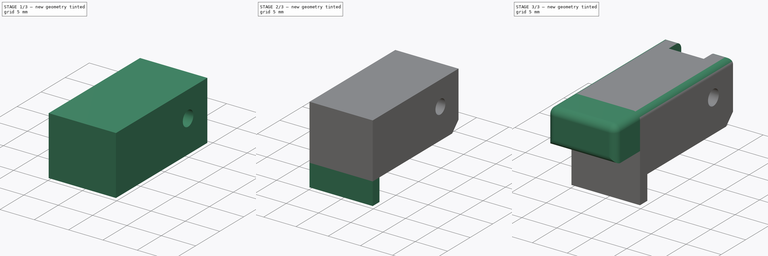
[diagram: build sequence overview — one tinted view per stage of 3, left to right]
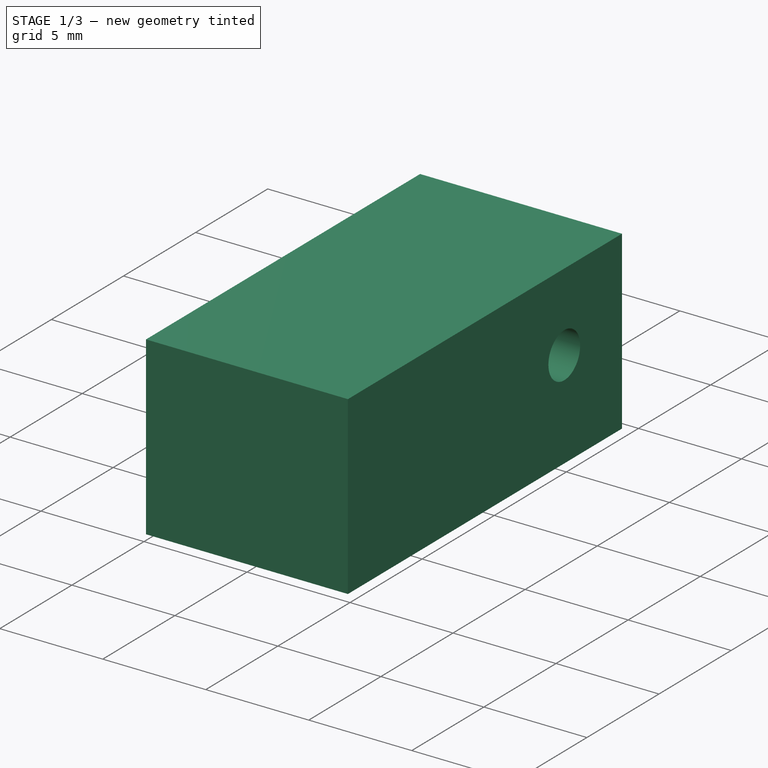
[diagram: stage 1 of 3 — iso view after this stage's code; geometry added in this stage tinted green]
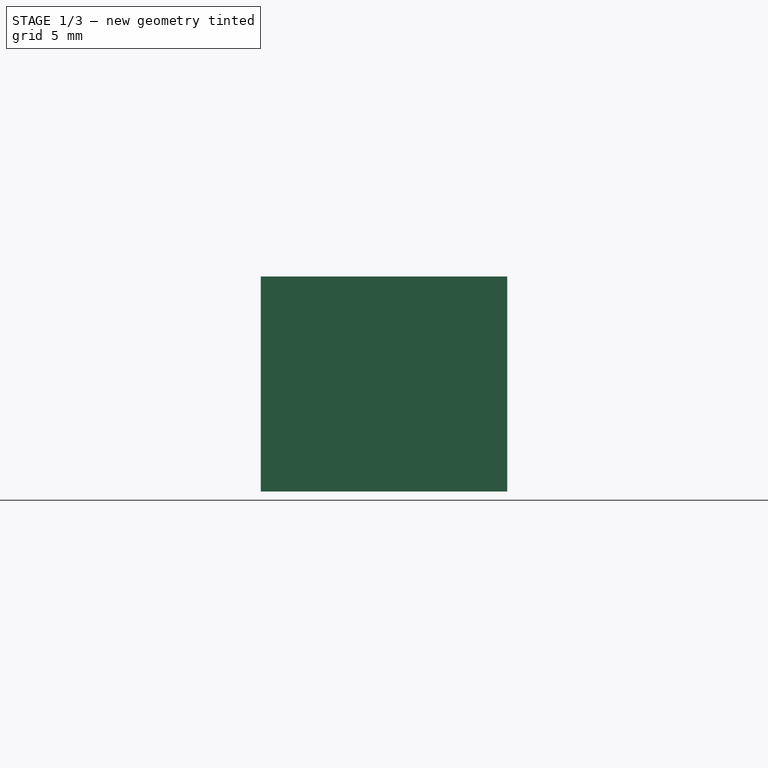
[diagram: stage 1 of 3 — front view after this stage's code; geometry added in this stage tinted green]
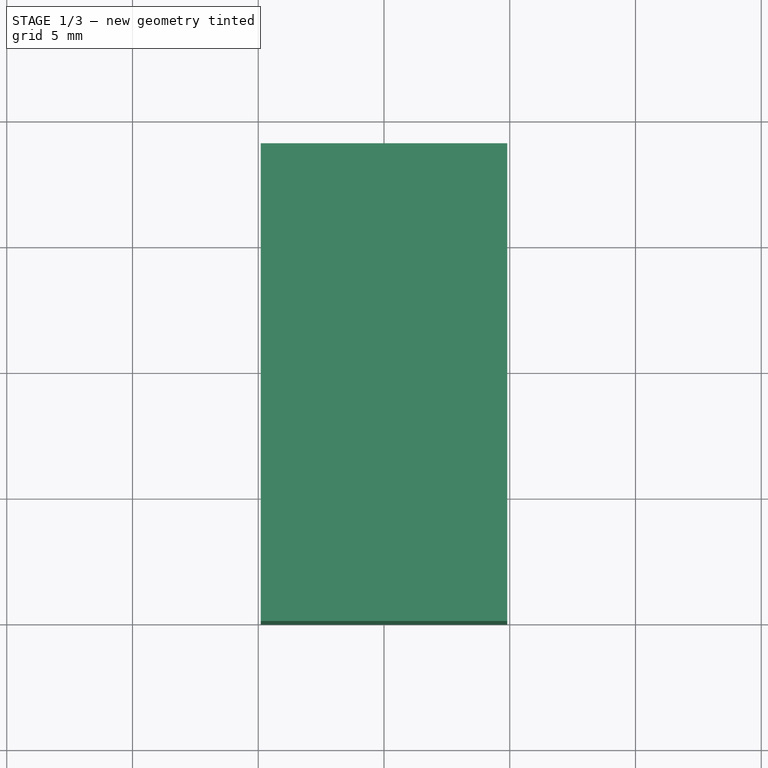
[diagram: stage 1 of 3 — top view after this stage's code; geometry added in this stage tinted green]
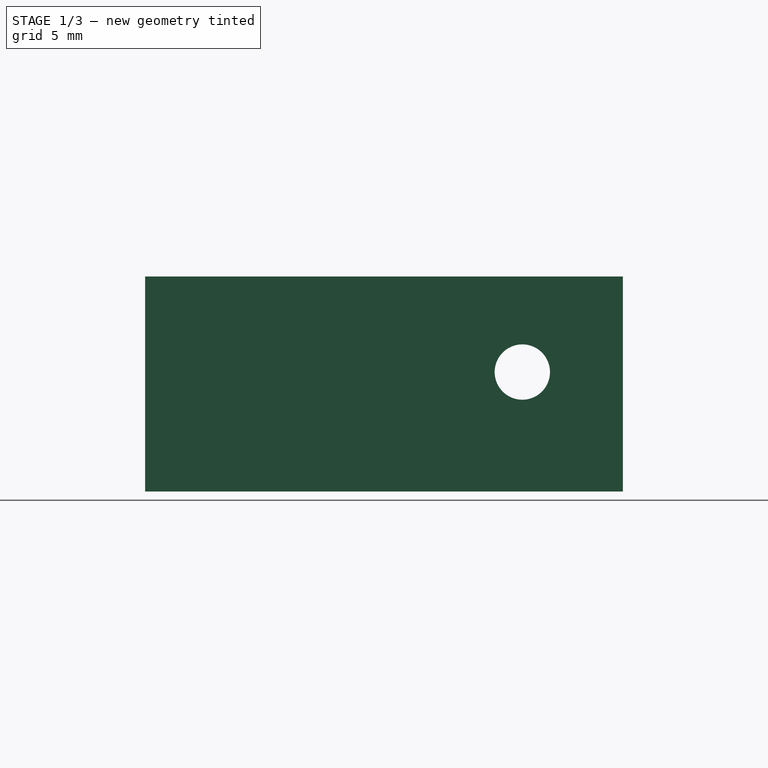
[diagram: stage 1 of 3 — right view after this stage's code; geometry added in this stage tinted green]
FCSTD DOCUMENT  (FreeCAD 0.19R24276 (Git))
Label: switch-cover
License: All rights reserved
LicenseURL: http://en.wikipedia.org/wiki/All_rights_reserved
objects: Sketcher::SketchObject×6, PartDesign::Pad×3, PartDesign::Pocket×2, PartDesign::Hole×1, PartDesign::Chamfer×1, PartDesign::Fillet×1, PartDesign::Body×1
note: 23 computed .brp shape members not serialized (recipe doc carries the construction recipe); baked Part::Feature solids carry a one-line shape summary decoded from their .brp

FEATURE [Sketcher::SketchObject] Sketch  label="base"
  FullyConstrained = true
  MapMode = 5
  Support = -> [XY_Plane]
  sketch-geometry (4):
    g0: LineSegment StartX=-4.9 StartY=9 StartZ=0 EndX=4.9 EndY=9 EndZ=0
    g1: LineSegment StartX=4.9 StartY=9 StartZ=0 EndX=4.9 EndY=-10 EndZ=0
    g2: LineSegment StartX=4.9 StartY=-10 StartZ=0 EndX=-4.9 EndY=-10 EndZ=0
    g3: LineSegment StartX=-4.9 StartY=-10 StartZ=0 EndX=-4.9 EndY=9 EndZ=0
  constraints (12):
    c: Coincident(g0,g1)
    c: Coincident(g1,g2)
    c: Coincident(g2,g3)
    c: Coincident(g3,g0)
    c: Horizontal(g0)
    c: Horizontal(g2)
    c: Vertical(g1)
    c: Vertical(g3)
    c: DistanceX(g-1,g0) = 4.9
    c: DistanceX(g0,g-1) = 4.9
    c: DistanceY(g-1,g0) = 9
    c: DistanceY(g2,g-1) = 10
FEATURE [PartDesign::Pad] Pad  label="base_pad"
  Direction = (1,1,1)
  Length = 8.55
  Length2 = 100
  Profile = -> Sketch
  Type = 0
FEATURE [Sketcher::SketchObject] Sketch001  label="hole"
  FullyConstrained = true
  MapMode = 5
  Placement = pos=(0,0,0) rot=(1,0,0;3.14159rad)
  sketch-geometry (4):
    g0: LineSegment StartX=-3 StartY=8.5 StartZ=0 EndX=3 EndY=8.5 EndZ=0
    g1: LineSegment StartX=3 StartY=8.5 StartZ=0 EndX=3 EndY=-7.5 EndZ=0
    g2: LineSegment StartX=3 StartY=-7.5 StartZ=0 EndX=-3 EndY=-7.5 EndZ=0
    g3: LineSegment StartX=-3 StartY=-7.5 StartZ=0 EndX=-3 EndY=8.5 EndZ=0
  constraints (12):
    c: Coincident(g0,g1)
    c: Coincident(g1,g2)
    c: Coincident(g2,g3)
    c: Coincident(g3,g0)
    c: Horizontal(g0)
    c: Horizontal(g2)
    c: Vertical(g1)
    c: Vertical(g3)
    c: DistanceX(g0,g-1) = 3
    c: DistanceX(g-1,g0) = 3
    c: DistanceY(g-1,g0) = 8.5
    c: DistanceY(g2,g-1) = 7.5
FEATURE [PartDesign::Pocket] Pocket  label="hole_pocket"
  BaseFeature = -> Pad
  Length = 7.3
  Length2 = 100
  Profile = -> Sketch001
  Type = 0
FEATURE [Sketcher::SketchObject] Sketch002  label="holder_hole"
  FullyConstrained = false
  MapMode = 5
  Placement = pos=(4.9,0,0) rot=(0.57735,0.57735,0.57735;2.0944rad)
  Support = -> [Pocket]
  sketch-geometry (1):
    g0: Circle CenterX=5 CenterY=4.75 CenterZ=0 NormalX=0 NormalY=0 NormalZ=1 AngleXU=0 Radius=1.1
  constraints (2):
    c: Diameter(g0) = 2.2
    c: DistanceY(g-1,g0) = 4.75
FEATURE [PartDesign::Hole] Hole
  BaseFeature = -> Pocket
  Depth = 25
  DepthType = 1
  Diameter = 2.2
  DrillForDepth = false
  DrillPoint = 1
  DrillPointAngle = 118
  HoleCutCountersinkAngle = 90
  HoleCutCustomValues = false
  HoleCutDepth = 0
  HoleCutDiameter = 6.1
  HoleCutType = 0
  ModelActualThread = false
  Profile = -> Sketch002
  Tapered = false
  TaperedAngle = 90
  ThreadAngle = 0
  ThreadClass = 0
  ThreadCutOffInner = 0
  ThreadCutOffOuter = 0
  ThreadDirection = 0
  ThreadFit = 0
  ThreadPitch = 0
  ThreadSize = 0
  ThreadType = 0
  Threaded = false
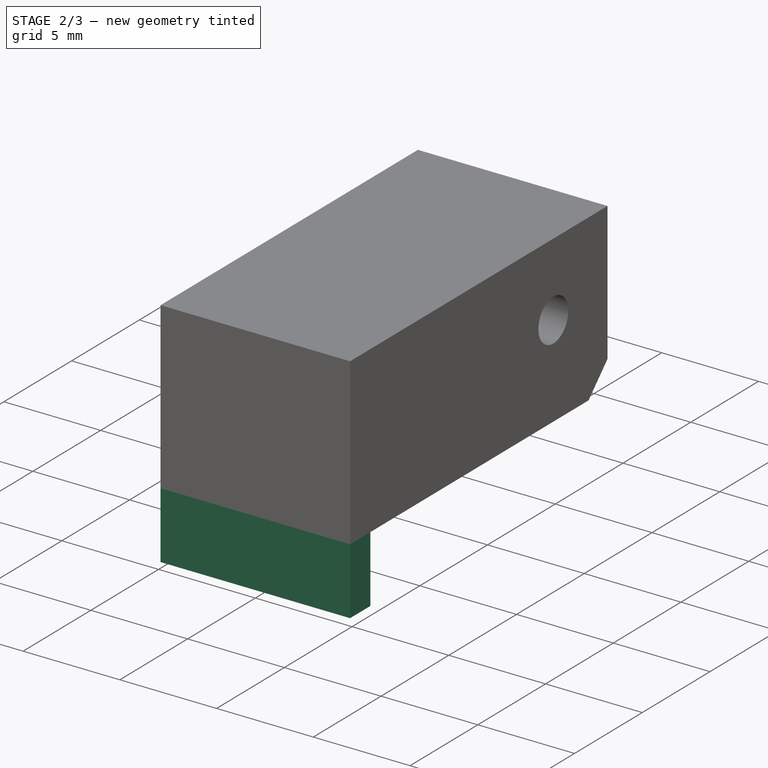
[diagram: stage 2 of 3 — iso view after this stage's code; geometry added in this stage tinted green]
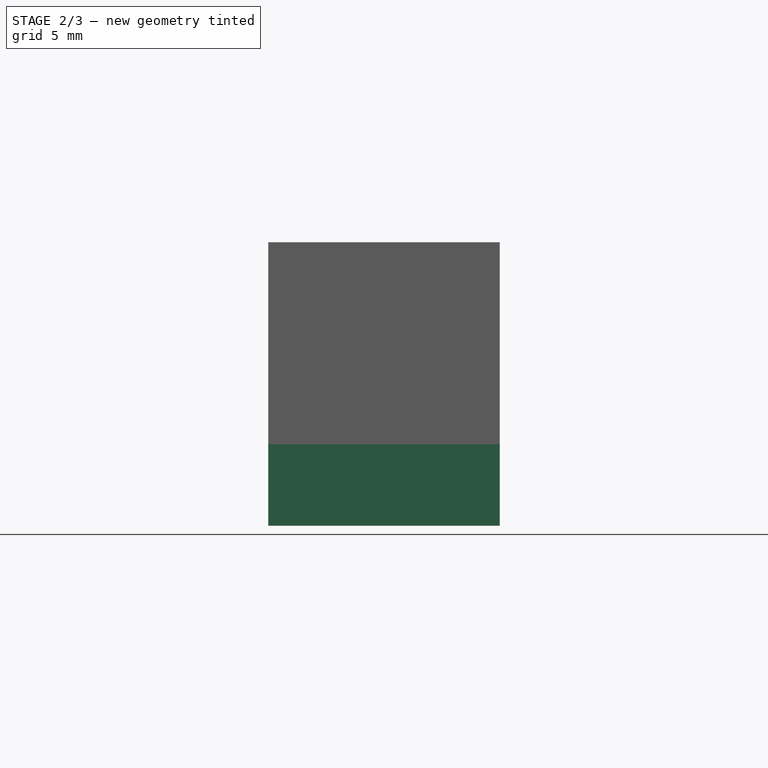
[diagram: stage 2 of 3 — front view after this stage's code; geometry added in this stage tinted green]
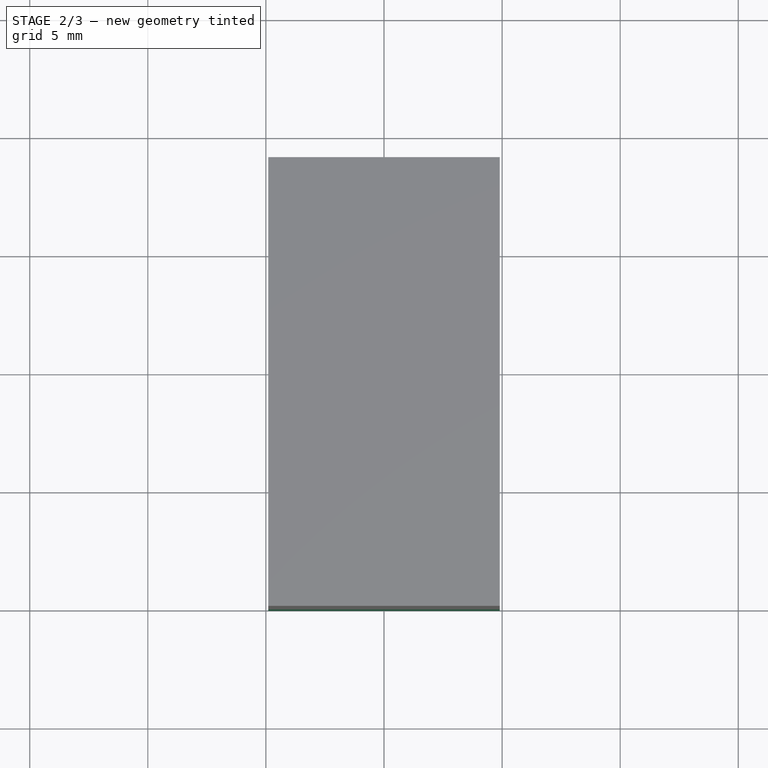
[diagram: stage 2 of 3 — top view after this stage's code; geometry added in this stage tinted green]
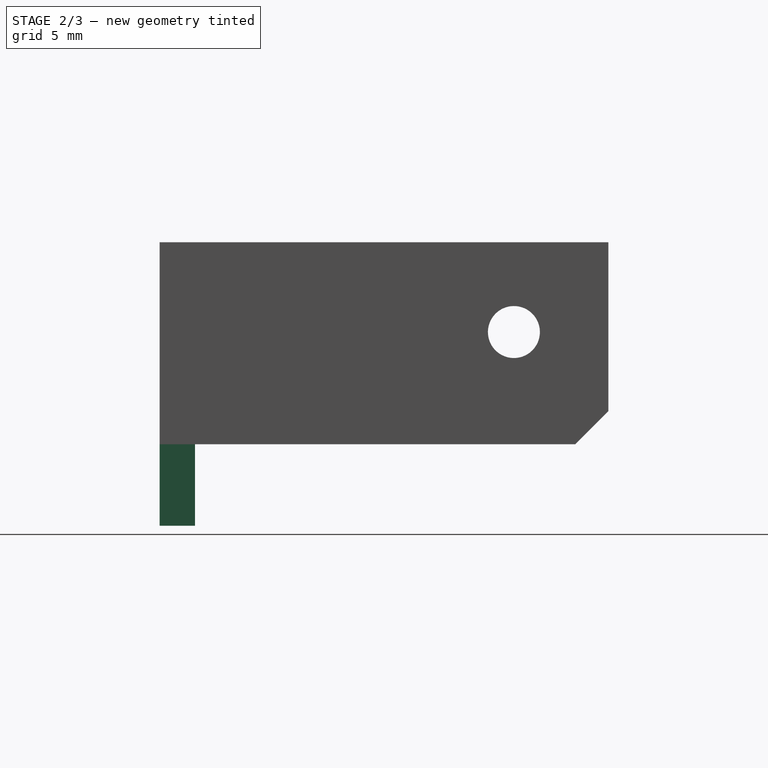
[diagram: stage 2 of 3 — right view after this stage's code; geometry added in this stage tinted green]
FEATURE [PartDesign::Chamfer] Chamfer
  Angle = 45
  Base = -> Hole [Edge3]
  BaseFeature = -> Hole
  ChamferType = 0
  FlipDirection = false
  Size = 1.4
  Size2 = 1
  SupportTransform = false
FEATURE [Sketcher::SketchObject] Sketch003  label="bottom_holder"
  FullyConstrained = true
  MapMode = 5
  Placement = pos=(0,0,0) rot=(1,0,0;3.14159rad)
  Support = -> [Chamfer]
  sketch-geometry (4):
    g0: LineSegment StartX=-4.9 StartY=10 StartZ=0 EndX=4.9 EndY=10 EndZ=0
    g1: LineSegment StartX=4.9 StartY=10 StartZ=0 EndX=4.9 EndY=8.5 EndZ=0
    g2: LineSegment StartX=4.9 StartY=8.5 StartZ=0 EndX=-4.9 EndY=8.5 EndZ=0
    g3: LineSegment StartX=-4.9 StartY=8.5 StartZ=0 EndX=-4.9 EndY=10 EndZ=0
  constraints (12):
    c: Coincident(g0,g1)
    c: Coincident(g1,g2)
    c: Coincident(g2,g3)
    c: Coincident(g3,g0)
    c: Horizontal(g0)
    c: Horizontal(g2)
    c: Vertical(g1)
    c: Vertical(g3)
    c: DistanceX(g-1,g0) = 4.9
    c: DistanceX(g0,g-1) = 4.9
    c: DistanceY(g3,g3) = 1.5
    c: DistanceY(g-1,g0) = 10
FEATURE [PartDesign::Pad] Pad001  label="bottom_holder_pad"
  BaseFeature = -> Chamfer
  Direction = (1,1,1)
  Length = 3.45
  Length2 = 100
  Profile = -> Sketch003
  Type = 0
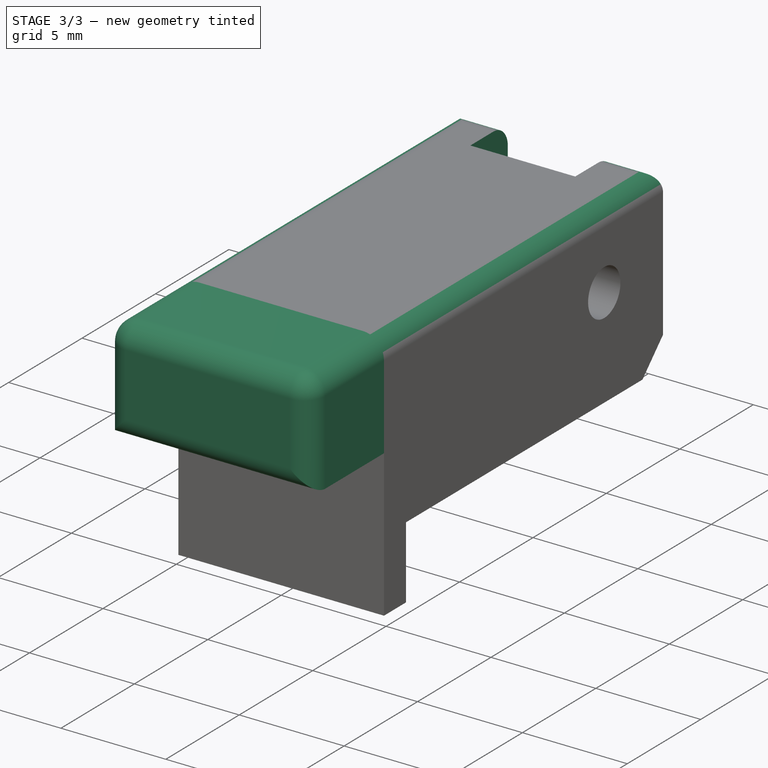
[diagram: stage 3 of 3 — iso view after this stage's code; geometry added in this stage tinted green]
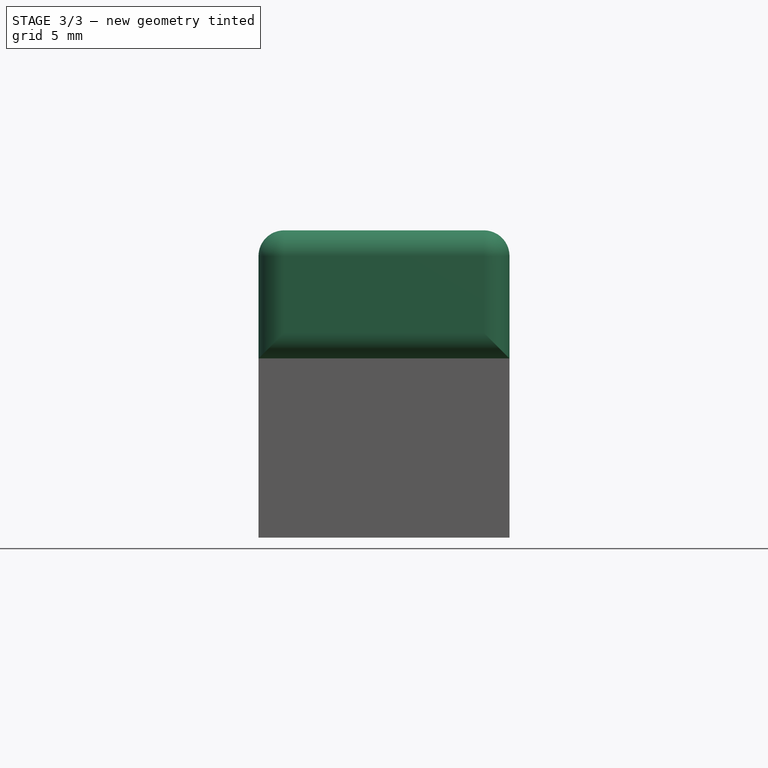
[diagram: stage 3 of 3 — front view after this stage's code; geometry added in this stage tinted green]
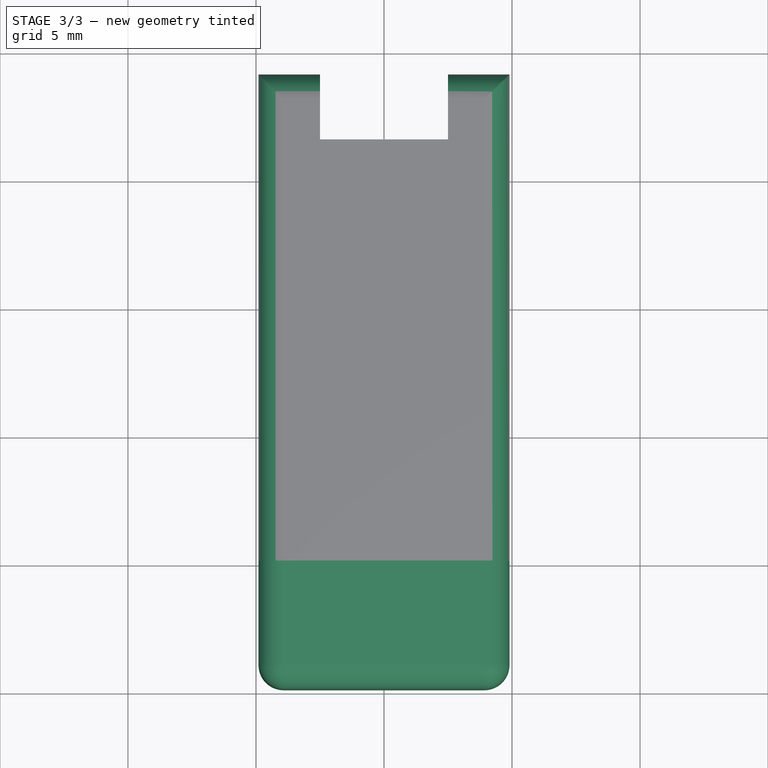
[diagram: stage 3 of 3 — top view after this stage's code; geometry added in this stage tinted green]
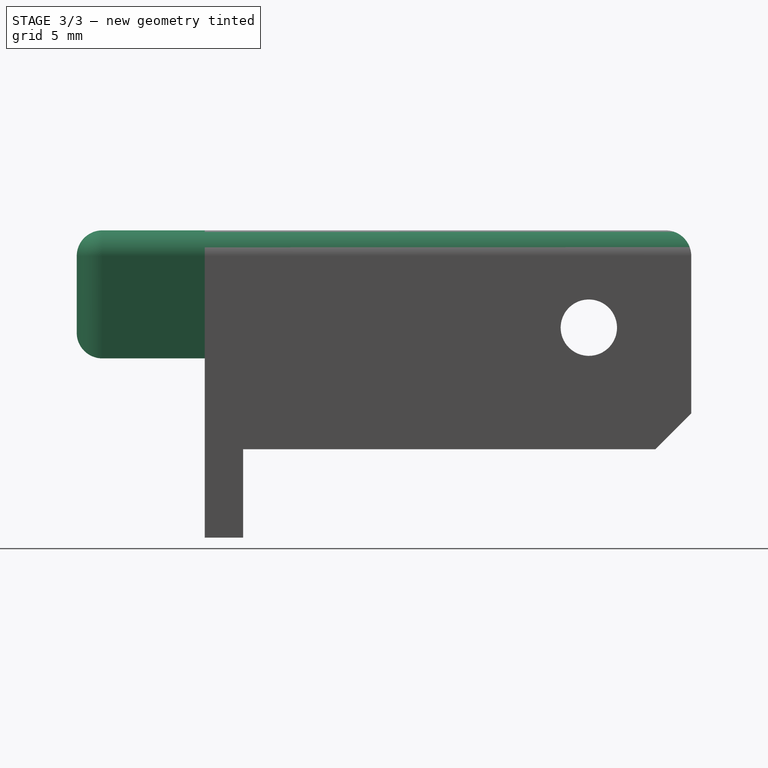
[diagram: stage 3 of 3 — right view after this stage's code; geometry added in this stage tinted green]
FEATURE [Sketcher::SketchObject] Sketch004  label="holder"
  FullyConstrained = true
  MapMode = 5
  Placement = pos=(0,-10,0) rot=(1,0,0;1.5708rad)
  Support = -> [Pad001]
  sketch-geometry (4):
    g0: LineSegment StartX=-4.9 StartY=8.55 StartZ=0 EndX=4.9 EndY=8.55 EndZ=0
    g1: LineSegment StartX=4.9 StartY=8.55 StartZ=0 EndX=4.9 EndY=3.55 EndZ=0
    g2: LineSegment StartX=4.9 StartY=3.55 StartZ=0 EndX=-4.9 EndY=3.55 EndZ=0
    g3: LineSegment StartX=-4.9 StartY=3.55 StartZ=0 EndX=-4.9 EndY=8.55 EndZ=0
  constraints (12):
    c: Coincident(g0,g1)
    c: Coincident(g1,g2)
    c: Coincident(g2,g3)
    c: Coincident(g3,g0)
    c: Horizontal(g0)
    c: Horizontal(g2)
    c: Vertical(g1)
    c: Vertical(g3)
    c: DistanceX(g-1,g0) = 4.9
    c: DistanceX(g0,g-1) = 4.9
    c: DistanceY(g-1,g2) = 3.55
    c: DistanceY(g-1,g0) = 8.55
FEATURE [PartDesign::Pad] Pad002  label="holder_pad"
  BaseFeature = -> Pad001
  Direction = (1,1,1)
  Length = 5
  Length2 = 100
  Profile = -> Sketch004
  Type = 0
FEATURE [PartDesign::Fillet] Fillet
  Base = -> Pad002 [Edge37,Edge36,Vertex26,Vertex24,Edge32,Edge10,Vertex9,Vertex12,Edge14,Edge3,Vertex2,Vertex4,Edge33,Edge55,Edge42,Vertex29,Vertex23]
  BaseFeature = -> Pad002
  Radius = 1
  SupportTransform = false
FEATURE [Sketcher::SketchObject] Sketch005  label="top_hole"
  FullyConstrained = false
  MapMode = 5
  Placement = pos=(0,0,8.55) rot=(0,0,1;0rad)
  Support = -> [Fillet]
  sketch-geometry (4):
    g0: LineSegment StartX=-2.5 StartY=15 StartZ=0 EndX=2.5 EndY=15 EndZ=0
    g1: LineSegment StartX=2.5 StartY=15 StartZ=0 EndX=2.5 EndY=6.45 EndZ=0
    g2: LineSegment StartX=2.5 StartY=6.45 StartZ=0 EndX=-2.5 EndY=6.45 EndZ=0
    g3: LineSegment StartX=-2.5 StartY=6.45 StartZ=0 EndX=-2.5 EndY=15 EndZ=0
  constraints (11):
    c: Coincident(g0,g1)
    c: Coincident(g1,g2)
    c: Coincident(g2,g3)
    c: Coincident(g3,g0)
    c: Horizontal(g0)
    c: Horizontal(g2)
    c: Vertical(g1)
    c: Vertical(g3)
    c: DistanceY(g-1,g1) = 6.45
    c: DistanceX(g2,g-1) = 2.5
    c: DistanceX(g-1,g1) = 2.5
FEATURE [PartDesign::Pocket] Pocket001  label="top_hole_pocket"
  BaseFeature = -> Fillet
  Length = 15
  Length2 = 100
  Profile = -> Sketch005
  Type = 0
FEATURE [PartDesign::Body] Body
  Group = -> [Sketch,Pad,Sketch001,Pocket,Sketch002,Hole,Chamfer,Sketch003,Pad001,Sketch004,Pad002,Fillet,Sketch005,Pocket001]
  Origin = -> Origin
  Placement = pos=(0,-5,-4.75) rot=(0,0,1;0rad)
  Tip = -> Pocket001
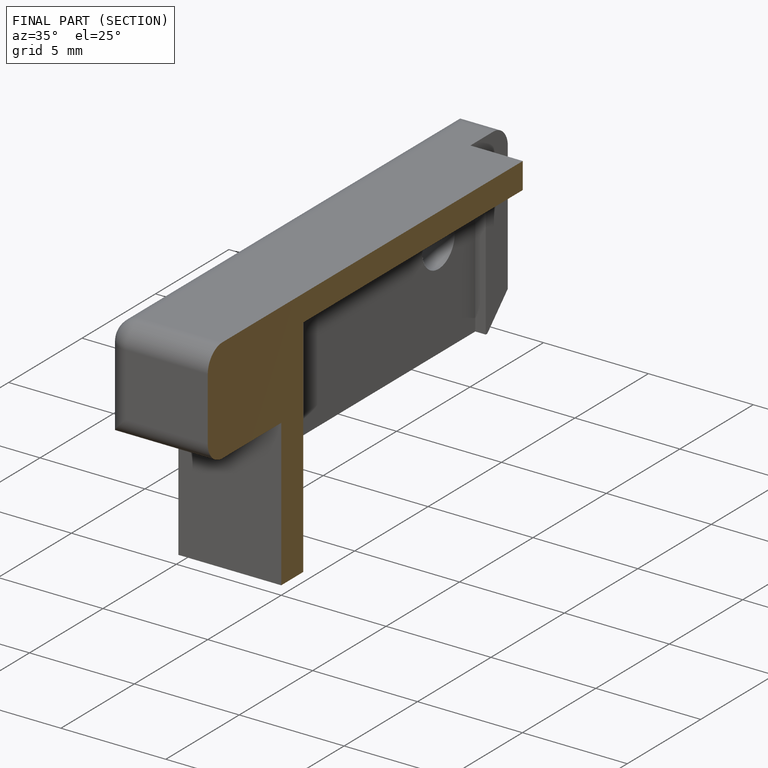
[diagram: finished part — half-section view (interior)]
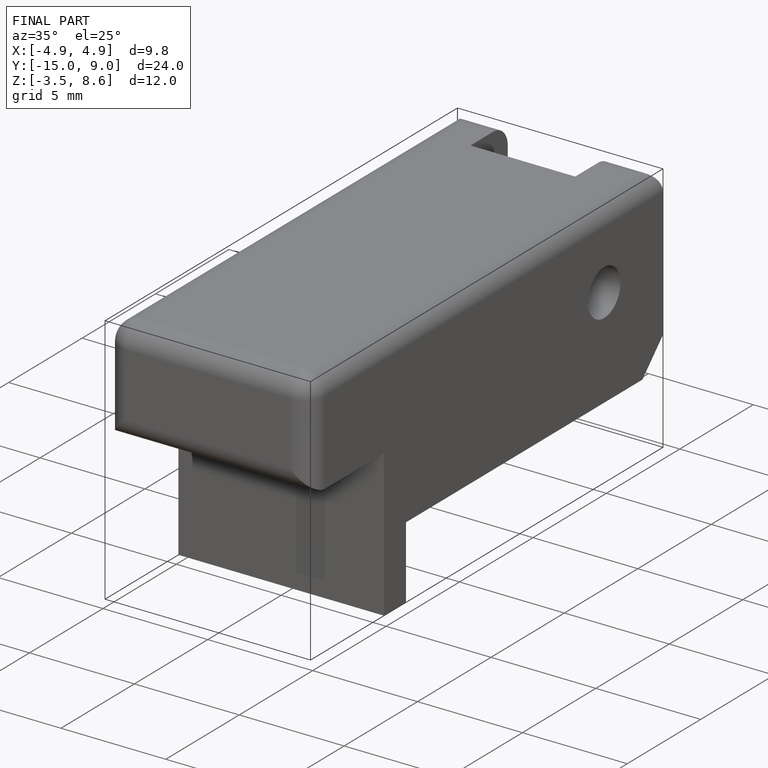
[diagram: finished part — iso view with bounding-box wireframe]
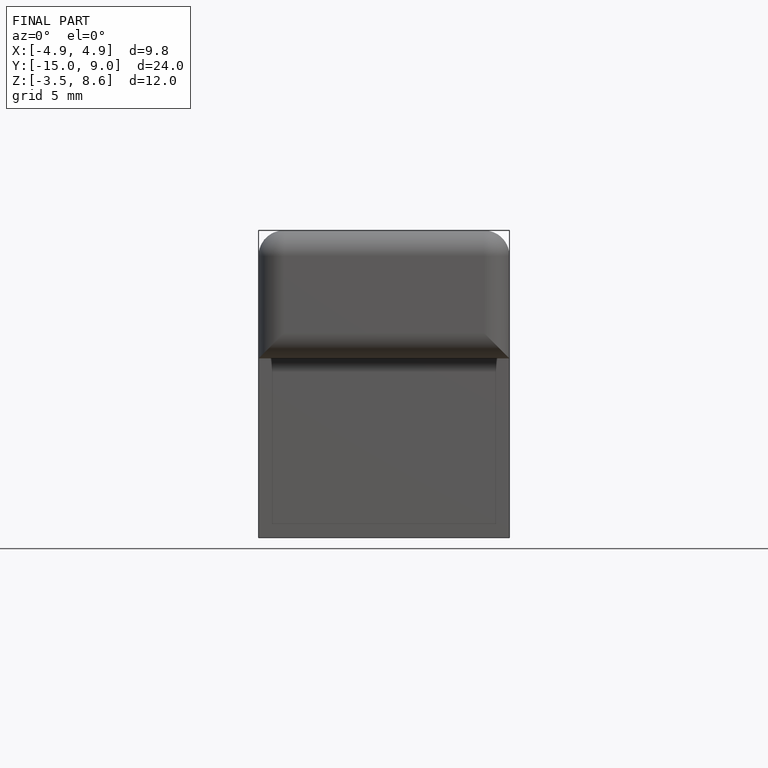
[diagram: finished part — front view with bounding-box wireframe]
